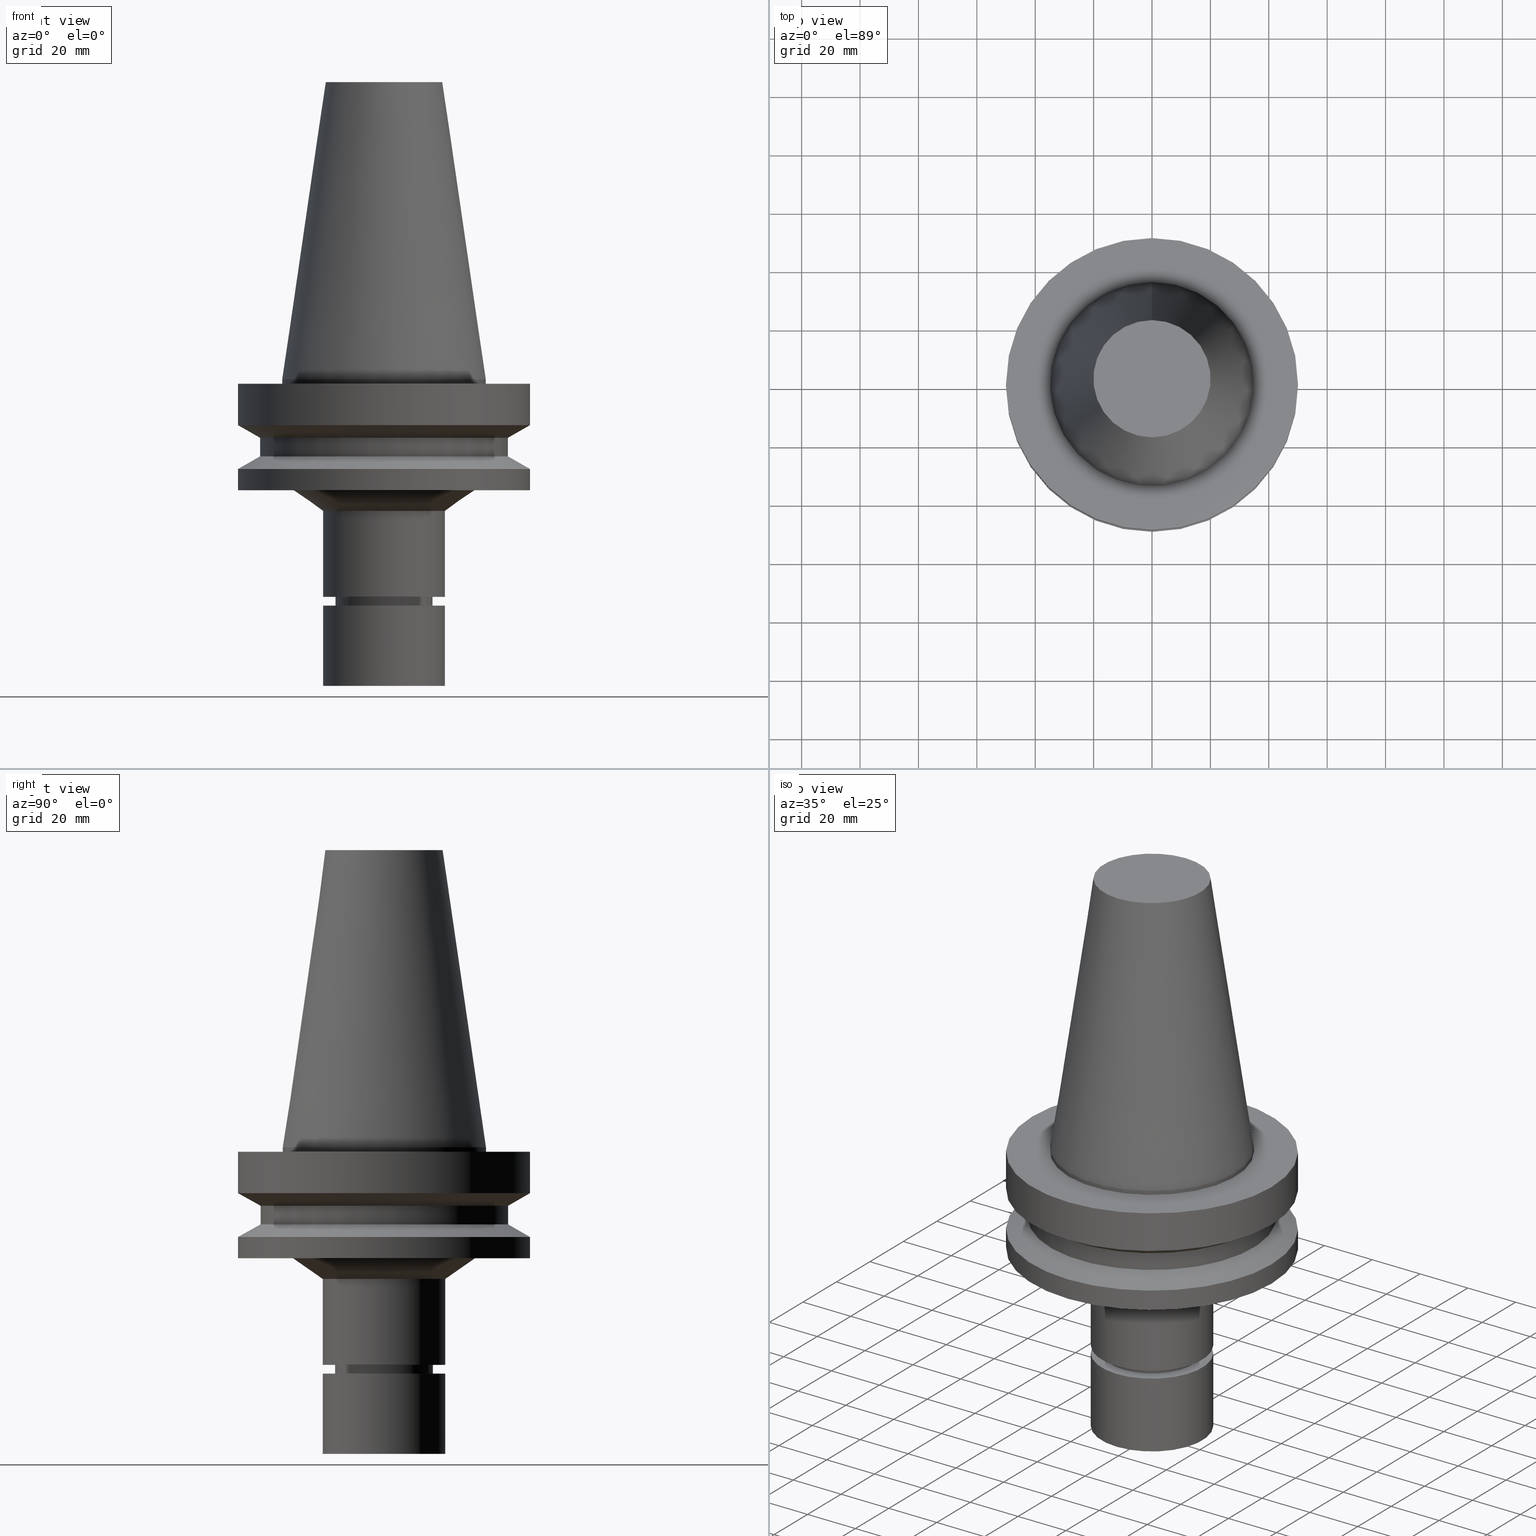
[diagram: canonical four-view strip — front | top / right | iso, engineering-drawing reading convention]
A machine part, canonical four-view strip (front | top / right | iso — engineering-drawing reading convention). The complete STEP part file that produces these views, byte-faithful:
ISO-10303-21;
HEADER;
FILE_DESCRIPTION((''),'1');
FILE_NAME('V:/90_\X2\53D65F9730C730FC30BF\X0\/00_\X2\6DE18DEF30C730FC30BF\X0\/ALL/BBT-BKUS\X2\FF76FF80FF9BFF78FF9E752852A05DE556F3\X0\201801/BBT50-MEGAER/BBT50-MEGAER25-105NL.stp','2018-02-02T08:07:09',(''),(''),'Spatial Interop R21 SP3','Kubotek KeyCreator 2011 V10.0.2 (22737)',' ');
FILE_SCHEMA(('automotive_design'));
ENDSEC;
DATA;
#1=MECHANICAL_DESIGN_GEOMETRIC_PRESENTATION_REPRESENTATION(' ',(#14,#15,#16,#17,#18,#19,#20,#21,#22,#23,#24,#25,#26,#27,#28,#29,#30,#31,#32,#33,#34,#35,#36,#37,#38,#39,#40,#41,#42,#43,#44,#45,#46,#47,#48,#49,#50,#51,#52,#53,#54,#55),#10);
#2=PRODUCT_DEFINITION_CONTEXT('',#56,'design');
#3=APPLICATION_PROTOCOL_DEFINITION('INTERNATIONAL STANDARD','automotive_design',1994,#56);
#4=PRODUCT_CATEGORY_RELATIONSHIP('NONE','NONE',#57,#58);
#5=SHAPE_DEFINITION_REPRESENTATION(#59,#60);
#6=PRODUCT_DEFINITION_CONTEXT('',#61,'design');
#7=APPLICATION_PROTOCOL_DEFINITION('INTERNATIONAL STANDARD','automotive_design',1994,#61);
#8=PRODUCT_CATEGORY_RELATIONSHIP('NONE','NONE',#62,#63);
#9=SHAPE_DEFINITION_REPRESENTATION(#64,#65);
#10= (GEOMETRIC_REPRESENTATION_CONTEXT(3)GLOBAL_UNCERTAINTY_ASSIGNED_CONTEXT((#68))GLOBAL_UNIT_ASSIGNED_CONTEXT((#70,#71,#72))REPRESENTATION_CONTEXT('NONE','WORKSPACE'));
#14=STYLED_ITEM('',(#74,#75),#76);
#15=STYLED_ITEM('',(#77,#78),#79);
#16=STYLED_ITEM('',(#80),#81);
#17=STYLED_ITEM('',(#82),#83);
#18=STYLED_ITEM('',(#84),#85);
#19=STYLED_ITEM('',(#86,#87),#88);
#20=STYLED_ITEM('',(#89),#90);
#21=STYLED_ITEM('',(#91,#92),#93);
#22=STYLED_ITEM('',(#94),#95);
#23=STYLED_ITEM('',(#96,#97),#98);
#24=STYLED_ITEM('',(#99),#100);
#25=STYLED_ITEM('',(#101,#102),#103);
#26=STYLED_ITEM('',(#104,#105),#106);
#27=STYLED_ITEM('',(#107),#108);
#28=STYLED_ITEM('',(#109),#110);
#29=STYLED_ITEM('',(#111,#112),#113);
#30=STYLED_ITEM('',(#114),#115);
#31=STYLED_ITEM('',(#116),#117);
#32=STYLED_ITEM('',(#118),#119);
#33=STYLED_ITEM('',(#120,#121),#122);
#34=STYLED_ITEM('',(#123),#124);
#35=STYLED_ITEM('',(#125),#126);
#36=STYLED_ITEM('',(#127),#128);
#37=STYLED_ITEM('',(#129,#130),#131);
#38=STYLED_ITEM('',(#132),#133);
#39=STYLED_ITEM('',(#134),#135);
#40=STYLED_ITEM('',(#136,#137),#138);
#41=STYLED_ITEM('',(#139,#140),#141);
#42=STYLED_ITEM('',(#142),#143);
#43=STYLED_ITEM('',(#144,#145),#146);
#44=STYLED_ITEM('',(#147,#148),#149);
#45=STYLED_ITEM('',(#150,#151),#152);
#46=STYLED_ITEM('',(#153,#154),#155);
#47=STYLED_ITEM('',(#156,#157),#158);
#48=STYLED_ITEM('',(#159,#160),#161);
#49=STYLED_ITEM('',(#162,#163),#164);
#50=STYLED_ITEM('',(#165),#166);
#51=STYLED_ITEM('',(#167),#168);
#52=STYLED_ITEM('',(#169,#170),#171);
#53=STYLED_ITEM('',(#172,#173),#174);
#54=STYLED_ITEM('',(#175,#176),#177);
#55=STYLED_ITEM('',(#178,#179),#180);
#56=APPLICATION_CONTEXT(' ');
#57=PRODUCT_CATEGORY('part','NONE');
#58=PRODUCT_RELATED_PRODUCT_CATEGORY('detail',' ',(#181));
#59=PRODUCT_DEFINITION_SHAPE('NONE','NONE',#182);
#60=ADVANCED_BREP_SHAPE_REPRESENTATION('Unnamed[1]',(#152,#183),#10);
#61=APPLICATION_CONTEXT(' ');
#62=PRODUCT_CATEGORY('part','NONE');
#63=PRODUCT_RELATED_PRODUCT_CATEGORY('detail',' ',(#184));
#64=PRODUCT_DEFINITION_SHAPE('NONE','NONE',#185);
#65=ADVANCED_BREP_SHAPE_REPRESENTATION('Unnamed[1]',(#141,#186),#10);
#68=UNCERTAINTY_MEASURE_WITH_UNIT(LENGTH_MEASURE(1.0E-006),#70,'','');
#70= (CONVERSION_BASED_UNIT('MILLIMETRE',#189)LENGTH_UNIT()NAMED_UNIT(#192));
#71= (NAMED_UNIT(#194)PLANE_ANGLE_UNIT()SI_UNIT($,.RADIAN.));
#72= (NAMED_UNIT(#194)SOLID_ANGLE_UNIT()SI_UNIT($,.STERADIAN.));
#74=PRESENTATION_STYLE_ASSIGNMENT((#200));
#75=PRESENTATION_STYLE_ASSIGNMENT((#201));
#76=ADVANCED_FACE('Unnamed[1]',(#202,#203),#204,.T.);
#77=PRESENTATION_STYLE_ASSIGNMENT((#205));
#78=PRESENTATION_STYLE_ASSIGNMENT((#206));
#79=ADVANCED_FACE('Unnamed[1]',(#207,#208),#209,.T.);
#80=PRESENTATION_STYLE_ASSIGNMENT((#210));
#81=EDGE_CURVE('Unnamed[1]',#211,#211,#212,.T.);
#82=PRESENTATION_STYLE_ASSIGNMENT((#213));
#83=EDGE_CURVE('Unnamed[1]',#214,#214,#215,.T.);
#84=PRESENTATION_STYLE_ASSIGNMENT((#216));
#85=EDGE_CURVE('Unnamed[1]',#217,#217,#218,.T.);
#86=PRESENTATION_STYLE_ASSIGNMENT((#219));
#87=PRESENTATION_STYLE_ASSIGNMENT((#220));
#88=ADVANCED_FACE('Unnamed[1]',(#221,#222),#223,.T.);
#89=PRESENTATION_STYLE_ASSIGNMENT((#224));
#90=EDGE_CURVE('Unnamed[1]',#225,#225,#226,.T.);
#91=PRESENTATION_STYLE_ASSIGNMENT((#227));
#92=PRESENTATION_STYLE_ASSIGNMENT((#228));
#93=ADVANCED_FACE('Unnamed[1]',(#229,#230),#231,.T.);
#94=PRESENTATION_STYLE_ASSIGNMENT((#232));
#95=EDGE_CURVE('Unnamed[1]',#233,#233,#234,.T.);
#96=PRESENTATION_STYLE_ASSIGNMENT((#235));
#97=PRESENTATION_STYLE_ASSIGNMENT((#236));
#98=ADVANCED_FACE('Unnamed[1]',(#237),#238,.T.);
#99=PRESENTATION_STYLE_ASSIGNMENT((#239));
#100=EDGE_CURVE('Unnamed[1]',#240,#240,#241,.T.);
#101=PRESENTATION_STYLE_ASSIGNMENT((#242));
#102=PRESENTATION_STYLE_ASSIGNMENT((#243));
#103=ADVANCED_FACE('Unnamed[1]',(#244),#245,.T.);
#104=PRESENTATION_STYLE_ASSIGNMENT((#246));
#105=PRESENTATION_STYLE_ASSIGNMENT((#247));
#106=ADVANCED_FACE('Unnamed[1]',(#248,#249),#250,.T.);
#107=PRESENTATION_STYLE_ASSIGNMENT((#251));
#108=EDGE_CURVE('Unnamed[1]',#252,#252,#253,.T.);
#109=PRESENTATION_STYLE_ASSIGNMENT((#254));
#110=EDGE_CURVE('Unnamed[1]',#255,#255,#256,.T.);
#111=PRESENTATION_STYLE_ASSIGNMENT((#257));
#112=PRESENTATION_STYLE_ASSIGNMENT((#258));
#113=ADVANCED_FACE('Unnamed[1]',(#259,#260),#261,.T.);
#114=PRESENTATION_STYLE_ASSIGNMENT((#262));
#115=EDGE_CURVE('Unnamed[1]',#263,#263,#264,.T.);
#116=PRESENTATION_STYLE_ASSIGNMENT((#265));
#117=EDGE_CURVE('Unnamed[1]',#266,#266,#267,.T.);
#118=PRESENTATION_STYLE_ASSIGNMENT((#268));
#119=EDGE_CURVE('Unnamed[1]',#269,#269,#270,.T.);
#120=PRESENTATION_STYLE_ASSIGNMENT((#271));
#121=PRESENTATION_STYLE_ASSIGNMENT((#272));
#122=ADVANCED_FACE('Unnamed[1]',(#273),#274,.T.);
#123=PRESENTATION_STYLE_ASSIGNMENT((#275));
#124=EDGE_CURVE('Unnamed[1]',#276,#276,#277,.T.);
#125=PRESENTATION_STYLE_ASSIGNMENT((#278));
#126=EDGE_CURVE('Unnamed[1]',#279,#279,#280,.T.);
#127=PRESENTATION_STYLE_ASSIGNMENT((#281));
#128=EDGE_CURVE('Unnamed[1]',#282,#282,#283,.T.);
#129=PRESENTATION_STYLE_ASSIGNMENT((#284));
#130=PRESENTATION_STYLE_ASSIGNMENT((#285));
#131=ADVANCED_FACE('Unnamed[1]',(#286,#287),#288,.T.);
#132=PRESENTATION_STYLE_ASSIGNMENT((#289));
#133=EDGE_CURVE('Unnamed[1]',#290,#290,#291,.T.);
#134=PRESENTATION_STYLE_ASSIGNMENT((#292));
#135=EDGE_CURVE('Unnamed[1]',#293,#293,#294,.T.);
#136=PRESENTATION_STYLE_ASSIGNMENT((#295));
#137=PRESENTATION_STYLE_ASSIGNMENT((#296));
#138=ADVANCED_FACE('Unnamed[1]',(#297,#298),#299,.T.);
#139=PRESENTATION_STYLE_ASSIGNMENT((#300));
#140=PRESENTATION_STYLE_ASSIGNMENT((#301));
#141=MANIFOLD_SOLID_BREP('Unnamed[1]',#302);
#142=PRESENTATION_STYLE_ASSIGNMENT((#303));
#143=EDGE_CURVE('Unnamed[1]',#304,#304,#305,.T.);
#144=PRESENTATION_STYLE_ASSIGNMENT((#306));
#145=PRESENTATION_STYLE_ASSIGNMENT((#307));
#146=ADVANCED_FACE('Unnamed[1]',(#308,#309),#310,.T.);
#147=PRESENTATION_STYLE_ASSIGNMENT((#311));
#148=PRESENTATION_STYLE_ASSIGNMENT((#312));
#149=ADVANCED_FACE('Unnamed[1]',(#313,#314),#315,.T.);
#150=PRESENTATION_STYLE_ASSIGNMENT((#316));
#151=PRESENTATION_STYLE_ASSIGNMENT((#317));
#152=MANIFOLD_SOLID_BREP('Unnamed[1]',#318);
#153=PRESENTATION_STYLE_ASSIGNMENT((#319));
#154=PRESENTATION_STYLE_ASSIGNMENT((#320));
#155=ADVANCED_FACE('Unnamed[1]',(#321,#322),#323,.T.);
#156=PRESENTATION_STYLE_ASSIGNMENT((#324));
#157=PRESENTATION_STYLE_ASSIGNMENT((#325));
#158=ADVANCED_FACE('Unnamed[1]',(#326,#327),#328,.T.);
#159=PRESENTATION_STYLE_ASSIGNMENT((#329));
#160=PRESENTATION_STYLE_ASSIGNMENT((#330));
#161=ADVANCED_FACE('Unnamed[1]',(#331,#332),#333,.T.);
#162=PRESENTATION_STYLE_ASSIGNMENT((#334));
#163=PRESENTATION_STYLE_ASSIGNMENT((#335));
#164=ADVANCED_FACE('Unnamed[1]',(#336,#337),#338,.T.);
#165=PRESENTATION_STYLE_ASSIGNMENT((#339));
#166=EDGE_CURVE('Unnamed[1]',#340,#340,#341,.T.);
#167=PRESENTATION_STYLE_ASSIGNMENT((#342));
#168=EDGE_CURVE('Unnamed[1]',#343,#343,#344,.T.);
#169=PRESENTATION_STYLE_ASSIGNMENT((#345));
#170=PRESENTATION_STYLE_ASSIGNMENT((#346));
#171=ADVANCED_FACE('Unnamed[1]',(#347),#348,.T.);
#172=PRESENTATION_STYLE_ASSIGNMENT((#349));
#173=PRESENTATION_STYLE_ASSIGNMENT((#350));
#174=ADVANCED_FACE('Unnamed[1]',(#351,#352),#353,.T.);
#175=PRESENTATION_STYLE_ASSIGNMENT((#354));
#176=PRESENTATION_STYLE_ASSIGNMENT((#355));
#177=ADVANCED_FACE('Unnamed[1]',(#356,#357),#358,.T.);
#178=PRESENTATION_STYLE_ASSIGNMENT((#359));
#179=PRESENTATION_STYLE_ASSIGNMENT((#360));
#180=ADVANCED_FACE('Unnamed[1]',(#361,#362),#363,.T.);
#181=PRODUCT('Unnamed[1]','Unnamed[1]','PART-Unnamed[1]-DESC',(#364));
#182=PRODUCT_DEFINITION('NONE','NONE',#365,#2);
#183=AXIS2_PLACEMENT_3D('',#366,#367,#368);
#184=PRODUCT('Unnamed[1]','Unnamed[1]','PART-Unnamed[1]-DESC',(#369));
#185=PRODUCT_DEFINITION('NONE','NONE',#370,#6);
#186=AXIS2_PLACEMENT_3D('',#371,#372,#373);
#189=LENGTH_MEASURE_WITH_UNIT(LENGTH_MEASURE(1.0),#374);
#192=DIMENSIONAL_EXPONENTS(1.0,0.0,0.0,0.0,0.0,0.0,0.0);
#194=DIMENSIONAL_EXPONENTS(0.0,0.0,0.0,0.0,0.0,0.0,0.0);
#200=SURFACE_STYLE_USAGE(.BOTH.,#375);
#201=CURVE_STYLE('',#376,POSITIVE_LENGTH_MEASURE(1000.0),#377);
#202=FACE_BOUND('',#378,.T.);
#203=FACE_BOUND('',#379,.T.);
#204=CYLINDRICAL_SURFACE('',#380,34.925);
#205=SURFACE_STYLE_USAGE(.BOTH.,#381);
#206=CURVE_STYLE('',#382,POSITIVE_LENGTH_MEASURE(1000.0),#383);
#207=FACE_BOUND('',#384,.T.);
#208=FACE_BOUND('',#385,.T.);
#209=CYLINDRICAL_SURFACE('',#386,16.0);
#210=CURVE_STYLE('',#387,POSITIVE_LENGTH_MEASURE(1000.0),#388);
#211=VERTEX_POINT('',#389);
#212=CIRCLE('',#390,50.0);
#213=CURVE_STYLE('',#391,POSITIVE_LENGTH_MEASURE(1000.0),#392);
#214=VERTEX_POINT('',#393);
#215=CIRCLE('',#394,16.7499999999907);
#216=CURVE_STYLE('',#395,POSITIVE_LENGTH_MEASURE(1000.0),#396);
#217=VERTEX_POINT('',#397);
#218=CIRCLE('',#398,21.0000000000002);
#219=SURFACE_STYLE_USAGE(.BOTH.,#399);
#220=CURVE_STYLE('',#400,POSITIVE_LENGTH_MEASURE(1000.0),#401);
#221=FACE_BOUND('',#402,.T.);
#222=FACE_BOUND('',#403,.T.);
#223=CYLINDRICAL_SURFACE('',#404,50.0);
#224=CURVE_STYLE('',#405,POSITIVE_LENGTH_MEASURE(1000.0),#406);
#225=VERTEX_POINT('',#407);
#226=CIRCLE('',#408,50.0);
#227=SURFACE_STYLE_USAGE(.BOTH.,#409);
#228=CURVE_STYLE('',#410,POSITIVE_LENGTH_MEASURE(1000.0),#411);
#229=FACE_BOUND('',#412,.T.);
#230=FACE_BOUND('',#413,.T.);
#231=CONICAL_SURFACE('',#414,26.071786335727,0.962446965226524);
#232=CURVE_STYLE('',#415,POSITIVE_LENGTH_MEASURE(1000.0),#416);
#233=VERTEX_POINT('',#417);
#234=CIRCLE('',#418,20.0791666651884);
#235=SURFACE_STYLE_USAGE(.BOTH.,#419);
#236=CURVE_STYLE('',#420,POSITIVE_LENGTH_MEASURE(1000.0),#421);
#237=FACE_OUTER_BOUND('',#422,.T.);
#238=PLANE('',#423);
#239=CURVE_STYLE('',#424,POSITIVE_LENGTH_MEASURE(1000.0),#425);
#240=VERTEX_POINT('',#426);
#241=CIRCLE('',#427,21.0);
#242=SURFACE_STYLE_USAGE(.BOTH.,#428);
#243=CURVE_STYLE('',#429,POSITIVE_LENGTH_MEASURE(1000.0),#430);
#244=FACE_OUTER_BOUND('',#431,.T.);
#245=PLANE('',#432);
#246=SURFACE_STYLE_USAGE(.BOTH.,#433);
#247=CURVE_STYLE('',#434,POSITIVE_LENGTH_MEASURE(1000.0),#435);
#248=FACE_BOUND('',#436,.T.);
#249=FACE_BOUND('',#437,.T.);
#250=CONICAL_SURFACE('',#438,16.3750000000008,1.0471975512006);
#251=CURVE_STYLE('',#439,POSITIVE_LENGTH_MEASURE(1000.0),#440);
#252=VERTEX_POINT('',#441);
#253=CIRCLE('',#442,16.0);
#254=CURVE_STYLE('',#443,POSITIVE_LENGTH_MEASURE(1000.0),#444);
#255=VERTEX_POINT('',#445);
#256=CIRCLE('',#446,34.925);
#257=SURFACE_STYLE_USAGE(.BOTH.,#447);
#258=CURVE_STYLE('',#448,POSITIVE_LENGTH_MEASURE(1000.0),#449);
#259=FACE_OUTER_BOUND('',#450,.T.);
#260=FACE_BOUND('',#451,.T.);
#261=PLANE('',#452);
#262=CURVE_STYLE('',#453,POSITIVE_LENGTH_MEASURE(1000.0),#454);
#263=VERTEX_POINT('',#455);
#264=CIRCLE('',#456,42.5);
#265=CURVE_STYLE('',#457,POSITIVE_LENGTH_MEASURE(1000.0),#458);
#266=VERTEX_POINT('',#459);
#267=CIRCLE('',#460,50.0);
#268=CURVE_STYLE('',#461,POSITIVE_LENGTH_MEASURE(1000.0),#462);
#269=VERTEX_POINT('',#463);
#270=CIRCLE('',#464,16.7500000000017);
#271=SURFACE_STYLE_USAGE(.BOTH.,#465);
#272=CURVE_STYLE('',#466,POSITIVE_LENGTH_MEASURE(1000.0),#467);
#273=FACE_OUTER_BOUND('',#468,.T.);
#274=PLANE('',#469);
#275=CURVE_STYLE('',#470,POSITIVE_LENGTH_MEASURE(1000.0),#471);
#276=VERTEX_POINT('',#472);
#277=CIRCLE('',#473,31.1435726714572);
#278=CURVE_STYLE('',#474,POSITIVE_LENGTH_MEASURE(1000.0),#475);
#279=VERTEX_POINT('',#476);
#280=CIRCLE('',#477,50.0);
#281=CURVE_STYLE('',#478,POSITIVE_LENGTH_MEASURE(1000.0),#479);
#282=VERTEX_POINT('',#480);
#283=CIRCLE('',#481,16.0);
#284=SURFACE_STYLE_USAGE(.BOTH.,#482);
#285=CURVE_STYLE('',#483,POSITIVE_LENGTH_MEASURE(1000.0),#484);
#286=FACE_BOUND('',#485,.T.);
#287=FACE_BOUND('',#486,.T.);
#288=CYLINDRICAL_SURFACE('',#487,21.0);
#289=CURVE_STYLE('',#488,POSITIVE_LENGTH_MEASURE(1000.0),#489);
#290=VERTEX_POINT('',#490);
#291=CIRCLE('',#491,21.0);
#292=CURVE_STYLE('',#492,POSITIVE_LENGTH_MEASURE(1000.0),#493);
#293=VERTEX_POINT('',#494);
#294=CIRCLE('',#495,20.9999999999967);
#295=SURFACE_STYLE_USAGE(.BOTH.,#496);
#296=CURVE_STYLE('',#497,POSITIVE_LENGTH_MEASURE(1000.0),#498);
#297=FACE_BOUND('',#499,.T.);
#298=FACE_BOUND('',#500,.T.);
#299=CYLINDRICAL_SURFACE('',#501,16.7499999999962);
#300=SURFACE_STYLE_USAGE(.BOTH.,#502);
#301=CURVE_STYLE('',#503,POSITIVE_LENGTH_MEASURE(1000.0),#504);
#302=CLOSED_SHELL('',(#98,#103,#131));
#303=CURVE_STYLE('',#505,POSITIVE_LENGTH_MEASURE(1000.0),#506);
#304=VERTEX_POINT('',#507);
#305=CIRCLE('',#508,42.5);
#306=SURFACE_STYLE_USAGE(.BOTH.,#509);
#307=CURVE_STYLE('',#510,POSITIVE_LENGTH_MEASURE(1000.0),#511);
#308=FACE_BOUND('',#512,.T.);
#309=FACE_BOUND('',#513,.T.);
#310=CONICAL_SURFACE('',#514,46.25,1.04719755108882);
#311=SURFACE_STYLE_USAGE(.BOTH.,#515);
#312=CURVE_STYLE('',#516,POSITIVE_LENGTH_MEASURE(1000.0),#517);
#313=FACE_BOUND('',#518,.T.);
#314=FACE_BOUND('',#519,.T.);
#315=CONICAL_SURFACE('',#520,15.4500000000002,0.523598775598085);
#316=SURFACE_STYLE_USAGE(.BOTH.,#521);
#317=CURVE_STYLE('',#522,POSITIVE_LENGTH_MEASURE(1000.0),#523);
#318=CLOSED_SHELL('',(#171,#149,#79,#106,#138,#113,#174,#93,#155,#88,#146,#161,#164,#158,#177,#76,#180,#122));
#319=SURFACE_STYLE_USAGE(.BOTH.,#524);
#320=CURVE_STYLE('',#525,POSITIVE_LENGTH_MEASURE(1000.0),#526);
#321=FACE_OUTER_BOUND('',#527,.T.);
#322=FACE_BOUND('',#528,.T.);
#323=PLANE('',#529);
#324=SURFACE_STYLE_USAGE(.BOTH.,#530);
#325=CURVE_STYLE('',#531,POSITIVE_LENGTH_MEASURE(1000.0),#532);
#326=FACE_BOUND('',#533,.T.);
#327=FACE_BOUND('',#534,.T.);
#328=CYLINDRICAL_SURFACE('',#535,50.0);
#329=SURFACE_STYLE_USAGE(.BOTH.,#536);
#330=CURVE_STYLE('',#537,POSITIVE_LENGTH_MEASURE(1000.0),#538);
#331=FACE_BOUND('',#539,.T.);
#332=FACE_BOUND('',#540,.T.);
#333=CYLINDRICAL_SURFACE('',#541,42.5);
#334=SURFACE_STYLE_USAGE(.BOTH.,#542);
#335=CURVE_STYLE('',#543,POSITIVE_LENGTH_MEASURE(1000.0),#544);
#336=FACE_BOUND('',#545,.T.);
#337=FACE_BOUND('',#546,.T.);
#338=CONICAL_SURFACE('',#547,46.25,1.04719755108882);
#339=CURVE_STYLE('',#548,POSITIVE_LENGTH_MEASURE(1000.0),#549);
#340=VERTEX_POINT('',#550);
#341=CIRCLE('',#551,34.925);
#342=CURVE_STYLE('',#552,POSITIVE_LENGTH_MEASURE(1000.0),#553);
#343=VERTEX_POINT('',#554);
#344=CIRCLE('',#555,14.9000000000004);
#345=SURFACE_STYLE_USAGE(.BOTH.,#556);
#346=CURVE_STYLE('',#557,POSITIVE_LENGTH_MEASURE(1000.0),#558);
#347=FACE_OUTER_BOUND('',#559,.T.);
#348=PLANE('',#560);
#349=SURFACE_STYLE_USAGE(.BOTH.,#561);
#350=CURVE_STYLE('',#562,POSITIVE_LENGTH_MEASURE(1000.0),#563);
#351=FACE_BOUND('',#564,.T.);
#352=FACE_BOUND('',#565,.T.);
#353=CYLINDRICAL_SURFACE('',#566,20.9999999999985);
#354=SURFACE_STYLE_USAGE(.BOTH.,#567);
#355=CURVE_STYLE('',#568,POSITIVE_LENGTH_MEASURE(1000.0),#569);
#356=FACE_BOUND('',#570,.T.);
#357=FACE_OUTER_BOUND('',#571,.T.);
#358=PLANE('',#572);
#359=SURFACE_STYLE_USAGE(.BOTH.,#573);
#360=CURVE_STYLE('',#574,POSITIVE_LENGTH_MEASURE(1000.0),#575);
#361=FACE_BOUND('',#576,.T.);
#362=FACE_BOUND('',#577,.T.);
#363=CONICAL_SURFACE('',#578,27.5020833325942,0.144812498253157);
#364=PRODUCT_CONTEXT('',#56,'mechanical');
#365=PRODUCT_DEFINITION_FORMATION_WITH_SPECIFIED_SOURCE(' ','NONE',#181,.NOT_KNOWN.);
#366=CARTESIAN_POINT('',(0.0,0.0,0.0));
#367=DIRECTION('',(0.0,0.0,1.0));
#368=DIRECTION('',(1.0,0.0,0.0));
#369=PRODUCT_CONTEXT('',#61,'mechanical');
#370=PRODUCT_DEFINITION_FORMATION_WITH_SPECIFIED_SOURCE(' ','NONE',#184,.NOT_KNOWN.);
#371=CARTESIAN_POINT('',(0.0,0.0,0.0));
#372=DIRECTION('',(0.0,0.0,1.0));
#373=DIRECTION('',(1.0,0.0,0.0));
#374= (NAMED_UNIT(#192)LENGTH_UNIT()SI_UNIT(.MILLI.,.METRE.));
#375=SURFACE_SIDE_STYLE('',(#580));
#376=DRAUGHTING_PRE_DEFINED_CURVE_FONT('continuous');
#377=COLOUR_RGB('',0.0,1.0,0.0);
#378=EDGE_LOOP('',(#581));
#379=EDGE_LOOP('',(#582));
#380=AXIS2_PLACEMENT_3D('',#583,#584,#585);
#381=SURFACE_SIDE_STYLE('',(#586));
#382=DRAUGHTING_PRE_DEFINED_CURVE_FONT('continuous');
#383=COLOUR_RGB('',0.0,1.0,0.0);
#384=EDGE_LOOP('',(#587));
#385=EDGE_LOOP('',(#588));
#386=AXIS2_PLACEMENT_3D('',#589,#590,#591);
#387=DRAUGHTING_PRE_DEFINED_CURVE_FONT('continuous');
#388=COLOUR_RGB('',0.0,1.0,0.0);
#389=CARTESIAN_POINT('',(1.87983283669119E-015,50.0,-30.7000000000001));
#390=AXIS2_PLACEMENT_3D('',#592,#593,#594);
#391=DRAUGHTING_PRE_DEFINED_CURVE_FONT('continuous');
#392=COLOUR_RGB('',0.0,1.0,0.0);
#393=CARTESIAN_POINT('',(4.56180932682384E-015,16.7499999999907,-74.4999999999992));
#394=AXIS2_PLACEMENT_3D('',#595,#596,#597);
#395=DRAUGHTING_PRE_DEFINED_CURVE_FONT('continuous');
#396=COLOUR_RGB('',0.0,1.0,0.0);
#397=CARTESIAN_POINT('',(4.56180932682389E-015,21.0000000000003,-74.4999999999999));
#398=AXIS2_PLACEMENT_3D('',#598,#599,#600);
#399=SURFACE_SIDE_STYLE('',(#601));
#400=DRAUGHTING_PRE_DEFINED_CURVE_FONT('continuous');
#401=COLOUR_RGB('',0.0,1.0,0.0);
#402=EDGE_LOOP('',(#602));
#403=EDGE_LOOP('',(#603));
#404=AXIS2_PLACEMENT_3D('',#604,#605,#606);
#405=DRAUGHTING_PRE_DEFINED_CURVE_FONT('continuous');
#406=COLOUR_RGB('',0.0,1.0,0.0);
#407=CARTESIAN_POINT('',(9.61347737330674E-016,50.0,-15.7));
#408=AXIS2_PLACEMENT_3D('',#607,#608,#609);
#409=SURFACE_SIDE_STYLE('',(#610));
#410=DRAUGHTING_PRE_DEFINED_CURVE_FONT('continuous');
#411=COLOUR_RGB('',0.0,1.0,0.0);
#412=EDGE_LOOP('',(#611));
#413=EDGE_LOOP('',(#612));
#414=AXIS2_PLACEMENT_3D('',#613,#614,#615);
#415=DRAUGHTING_PRE_DEFINED_CURVE_FONT('continuous');
#416=COLOUR_RGB('',0.0,1.0,0.0);
#417=CARTESIAN_POINT('',(-6.23345220766003E-015,20.0791666651884,101.8));
#418=AXIS2_PLACEMENT_3D('',#616,#617,#618);
#419=SURFACE_SIDE_STYLE('',(#619));
#420=DRAUGHTING_PRE_DEFINED_CURVE_FONT('continuous');
#421=COLOUR_RGB('',0.0,1.0,0.0);
#422=EDGE_LOOP('',(#620));
#423=AXIS2_PLACEMENT_3D('',#621,#622,#623);
#424=DRAUGHTING_PRE_DEFINED_CURVE_FONT('continuous');
#425=COLOUR_RGB('',0.0,1.0,0.0);
#426=CARTESIAN_POINT('',(6.4293956955236E-015,21.0,-105.0));
#427=AXIS2_PLACEMENT_3D('',#624,#625,#626);
#428=SURFACE_SIDE_STYLE('',(#627));
#429=DRAUGHTING_PRE_DEFINED_CURVE_FONT('continuous');
#430=COLOUR_RGB('',0.0,1.0,0.0);
#431=EDGE_LOOP('',(#628));
#432=AXIS2_PLACEMENT_3D('',#629,#630,#631);
#433=SURFACE_SIDE_STYLE('',(#632));
#434=DRAUGHTING_PRE_DEFINED_CURVE_FONT('continuous');
#435=COLOUR_RGB('',0.0,1.0,0.0);
#436=EDGE_LOOP('',(#633));
#437=EDGE_LOOP('',(#634));
#438=AXIS2_PLACEMENT_3D('',#635,#636,#637);
#439=DRAUGHTING_PRE_DEFINED_CURVE_FONT('continuous');
#440=COLOUR_RGB('',0.0,1.0,0.0);
#441=CARTESIAN_POINT('',(4.95371697258611E-015,16.0,-80.9003375672901));
#442=AXIS2_PLACEMENT_3D('',#638,#639,#640);
#443=DRAUGHTING_PRE_DEFINED_CURVE_FONT('continuous');
#444=COLOUR_RGB('',0.0,1.0,0.0);
#445=CARTESIAN_POINT('',(9.18485099360511E-017,34.925,-1.5));
#446=AXIS2_PLACEMENT_3D('',#641,#642,#643);
#447=SURFACE_SIDE_STYLE('',(#644));
#448=DRAUGHTING_PRE_DEFINED_CURVE_FONT('continuous');
#449=COLOUR_RGB('',0.0,1.0,0.0);
#450=EDGE_LOOP('',(#645));
#451=EDGE_LOOP('',(#646));
#452=AXIS2_PLACEMENT_3D('',#647,#648,#649);
#453=DRAUGHTING_PRE_DEFINED_CURVE_FONT('continuous');
#454=COLOUR_RGB('',0.0,1.0,0.0);
#455=CARTESIAN_POINT('',(1.2264915470779E-015,42.5,-20.03012702));
#456=AXIS2_PLACEMENT_3D('',#650,#651,#652);
#457=DRAUGHTING_PRE_DEFINED_CURVE_FONT('continuous');
#458=COLOUR_RGB('',0.0,1.0,0.0);
#459=CARTESIAN_POINT('',(9.18485099360509E-017,50.0,-1.49999999999999));
#460=AXIS2_PLACEMENT_3D('',#653,#654,#655);
#461=DRAUGHTING_PRE_DEFINED_CURVE_FONT('continuous');
#462=COLOUR_RGB('',0.0,1.0,0.0);
#463=CARTESIAN_POINT('',(4.92720259161817E-015,16.7500000000017,-80.4673248654009));
#464=AXIS2_PLACEMENT_3D('',#656,#657,#658);
#465=SURFACE_SIDE_STYLE('',(#659));
#466=DRAUGHTING_PRE_DEFINED_CURVE_FONT('continuous');
#467=COLOUR_RGB('',0.0,1.0,0.0);
#468=EDGE_LOOP('',(#660));
#469=AXIS2_PLACEMENT_3D('',#661,#662,#663);
#470=DRAUGHTING_PRE_DEFINED_CURVE_FONT('continuous');
#471=COLOUR_RGB('',0.0,1.0,0.0);
#472=CARTESIAN_POINT('',(2.32682891837996E-015,31.1435726714572,-37.9999999999998));
#473=AXIS2_PLACEMENT_3D('',#664,#665,#666);
#474=DRAUGHTING_PRE_DEFINED_CURVE_FONT('continuous');
#475=COLOUR_RGB('',0.0,1.0,0.0);
#476=CARTESIAN_POINT('',(2.32682891837996E-015,50.0,-37.9999999999998));
#477=AXIS2_PLACEMENT_3D('',#667,#668,#669);
#478=DRAUGHTING_PRE_DEFINED_CURVE_FONT('continuous');
#479=COLOUR_RGB('',0.0,1.0,0.0);
#480=CARTESIAN_POINT('',(5.68816255169872E-015,16.0,-92.8947441116744));
#481=AXIS2_PLACEMENT_3D('',#670,#671,#672);
#482=SURFACE_SIDE_STYLE('',(#673));
#483=DRAUGHTING_PRE_DEFINED_CURVE_FONT('continuous');
#484=COLOUR_RGB('',0.0,1.0,0.0);
#485=EDGE_LOOP('',(#674));
#486=EDGE_LOOP('',(#675));
#487=AXIS2_PLACEMENT_3D('',#676,#677,#678);
#488=DRAUGHTING_PRE_DEFINED_CURVE_FONT('continuous');
#489=COLOUR_RGB('',0.0,1.0,0.0);
#490=CARTESIAN_POINT('',(4.74550634669599E-015,21.0,-77.5));
#491=AXIS2_PLACEMENT_3D('',#679,#680,#681);
#492=DRAUGHTING_PRE_DEFINED_CURVE_FONT('continuous');
#493=COLOUR_RGB('',0.0,1.0,0.0);
#494=CARTESIAN_POINT('',(2.75941339741663E-015,20.9999999999967,-45.0646406676249));
#495=AXIS2_PLACEMENT_3D('',#682,#683,#684);
#496=SURFACE_SIDE_STYLE('',(#685));
#497=DRAUGHTING_PRE_DEFINED_CURVE_FONT('continuous');
#498=COLOUR_RGB('',0.0,1.0,0.0);
#499=EDGE_LOOP('',(#686));
#500=EDGE_LOOP('',(#687));
#501=AXIS2_PLACEMENT_3D('',#688,#689,#690);
#502=SURFACE_SIDE_STYLE('',(#691));
#503=DRAUGHTING_PRE_DEFINED_CURVE_FONT('continuous');
#504=COLOUR_RGB('',0.0,1.0,0.0);
#505=DRAUGHTING_PRE_DEFINED_CURVE_FONT('continuous');
#506=COLOUR_RGB('',0.0,1.0,0.0);
#507=CARTESIAN_POINT('',(1.61468902694397E-015,42.5,-26.3698729800001));
#508=AXIS2_PLACEMENT_3D('',#692,#693,#694);
#509=SURFACE_SIDE_STYLE('',(#695));
#510=DRAUGHTING_PRE_DEFINED_CURVE_FONT('continuous');
#511=COLOUR_RGB('',0.0,1.0,0.0);
#512=EDGE_LOOP('',(#696));
#513=EDGE_LOOP('',(#697));
#514=AXIS2_PLACEMENT_3D('',#698,#699,#700);
#515=SURFACE_SIDE_STYLE('',(#701));
#516=DRAUGHTING_PRE_DEFINED_CURVE_FONT('continuous');
#517=COLOUR_RGB('',0.0,1.0,0.0);
#518=EDGE_LOOP('',(#702));
#519=EDGE_LOOP('',(#703));
#520=AXIS2_PLACEMENT_3D('',#704,#705,#706);
#521=SURFACE_SIDE_STYLE('',(#707));
#522=DRAUGHTING_PRE_DEFINED_CURVE_FONT('continuous');
#523=COLOUR_RGB('',0.0,1.0,0.0);
#524=SURFACE_SIDE_STYLE('',(#708));
#525=DRAUGHTING_PRE_DEFINED_CURVE_FONT('continuous');
#526=COLOUR_RGB('',0.0,1.0,0.0);
#527=EDGE_LOOP('',(#709));
#528=EDGE_LOOP('',(#710));
#529=AXIS2_PLACEMENT_3D('',#711,#712,#713);
#530=SURFACE_SIDE_STYLE('',(#714));
#531=DRAUGHTING_PRE_DEFINED_CURVE_FONT('continuous');
#532=COLOUR_RGB('',0.0,1.0,0.0);
#533=EDGE_LOOP('',(#715));
#534=EDGE_LOOP('',(#716));
#535=AXIS2_PLACEMENT_3D('',#717,#718,#719);
#536=SURFACE_SIDE_STYLE('',(#720));
#537=DRAUGHTING_PRE_DEFINED_CURVE_FONT('continuous');
#538=COLOUR_RGB('',0.0,1.0,0.0);
#539=EDGE_LOOP('',(#721));
#540=EDGE_LOOP('',(#722));
#541=AXIS2_PLACEMENT_3D('',#723,#724,#725);
#542=SURFACE_SIDE_STYLE('',(#726));
#543=DRAUGHTING_PRE_DEFINED_CURVE_FONT('continuous');
#544=COLOUR_RGB('',0.0,1.0,0.0);
#545=EDGE_LOOP('',(#727));
#546=EDGE_LOOP('',(#728));
#547=AXIS2_PLACEMENT_3D('',#729,#730,#731);
#548=DRAUGHTING_PRE_DEFINED_CURVE_FONT('continuous');
#549=COLOUR_RGB('',0.0,1.0,0.0);
#550=CARTESIAN_POINT('',(-4.30483861169435E-031,34.925,4.27707894602213E-015));
#551=AXIS2_PLACEMENT_3D('',#732,#733,#734);
#552=DRAUGHTING_PRE_DEFINED_CURVE_FONT('continuous');
#553=COLOUR_RGB('',0.0,1.0,0.0);
#554=CARTESIAN_POINT('',(5.80482582795848E-015,14.9000000000005,-94.8000000000004));
#555=AXIS2_PLACEMENT_3D('',#735,#736,#737);
#556=SURFACE_SIDE_STYLE('',(#738));
#557=DRAUGHTING_PRE_DEFINED_CURVE_FONT('continuous');
#558=COLOUR_RGB('',0.0,1.0,0.0);
#559=EDGE_LOOP('',(#739));
#560=AXIS2_PLACEMENT_3D('',#740,#741,#742);
#561=SURFACE_SIDE_STYLE('',(#743));
#562=DRAUGHTING_PRE_DEFINED_CURVE_FONT('continuous');
#563=COLOUR_RGB('',0.0,1.0,0.0);
#564=EDGE_LOOP('',(#744));
#565=EDGE_LOOP('',(#745));
#566=AXIS2_PLACEMENT_3D('',#746,#747,#748);
#567=SURFACE_SIDE_STYLE('',(#749));
#568=DRAUGHTING_PRE_DEFINED_CURVE_FONT('continuous');
#569=COLOUR_RGB('',0.0,1.0,0.0);
#570=EDGE_LOOP('',(#750));
#571=EDGE_LOOP('',(#751));
#572=AXIS2_PLACEMENT_3D('',#752,#753,#754);
#573=SURFACE_SIDE_STYLE('',(#755));
#574=DRAUGHTING_PRE_DEFINED_CURVE_FONT('continuous');
#575=COLOUR_RGB('',0.0,1.0,0.0);
#576=EDGE_LOOP('',(#756));
#577=EDGE_LOOP('',(#757));
#578=AXIS2_PLACEMENT_3D('',#758,#759,#760);
#580=SURFACE_STYLE_FILL_AREA(#761);
#581=ORIENTED_EDGE('',*,*,#166,.F.);
#582=ORIENTED_EDGE('',*,*,#110,.T.);
#583=CARTESIAN_POINT('',(4.59242549680257E-017,1.2996063069323E-014,-0.75));
#584=DIRECTION('',(-6.12323399573677E-017,1.40684069939028E-019,1.0));
#585=DIRECTION('',(-4.81853831597193E-033,1.0,-1.40684069939028E-019));
#586=SURFACE_STYLE_FILL_AREA(#762);
#587=ORIENTED_EDGE('',*,*,#108,.F.);
#588=ORIENTED_EDGE('',*,*,#128,.T.);
#589=CARTESIAN_POINT('',(5.32093976214242E-015,1.29839434826625E-014,-86.8975408394823));
#590=DIRECTION('',(-6.12323399573677E-017,1.40684069939021E-019,1.0));
#591=DIRECTION('',(-4.81853831597193E-033,1.0,-1.40684069939021E-019));
#592=CARTESIAN_POINT('',(1.87983283669119E-015,1.29918495814283E-014,-30.7000000000001));
#593=DIRECTION('',(-6.12323399573677E-017,1.40684069939013E-019,1.0));
#594=DIRECTION('',(-4.81853831597193E-033,1.0,-1.40684069939013E-019));
#595=CARTESIAN_POINT('',(4.56180932682384E-015,1.2985687619165E-014,-74.4999999999992));
#596=DIRECTION('',(-6.12323399573677E-017,1.40684069939025E-019,1.0));
#597=DIRECTION('',(-4.81853831597193E-033,1.0,-1.40684069939025E-019));
#598=CARTESIAN_POINT('',(4.56180932682389E-015,1.2985687619165E-014,-74.4999999999999));
#599=DIRECTION('',(-6.12323399573677E-017,1.40684069939029E-019,1.0));
#600=DIRECTION('',(-4.81853831597193E-033,1.0,-1.40684069939029E-019));
#601=SURFACE_STYLE_FILL_AREA(#763);
#602=ORIENTED_EDGE('',*,*,#81,.F.);
#603=ORIENTED_EDGE('',*,*,#126,.T.);
#604=CARTESIAN_POINT('',(2.10333087753557E-015,1.29913360845731E-014,-34.3499999999999));
#605=DIRECTION('',(-6.12323399573677E-017,1.40684069939013E-019,1.0));
#606=DIRECTION('',(-4.81853831597193E-033,1.0,-1.40684069939013E-019));
#607=CARTESIAN_POINT('',(9.61347737330675E-016,1.29939598424774E-014,-15.7));
#608=DIRECTION('',(-6.12323399573677E-017,1.40684069939013E-019,1.0));
#609=DIRECTION('',(-4.81853831597193E-033,1.0,-1.40684069939013E-019));
#610=SURFACE_STYLE_FILL_AREA(#764);
#611=ORIENTED_EDGE('',*,*,#124,.F.);
#612=ORIENTED_EDGE('',*,*,#135,.T.);
#613=CARTESIAN_POINT('',(2.54312115789829E-015,1.29903256465169E-014,-41.5323203338124));
#614=DIRECTION('',(-6.12323399573676E-017,1.40684069939026E-019,1.0));
#615=DIRECTION('',(-4.81853831597193E-033,1.0,-1.40684069939026E-019));
#616=CARTESIAN_POINT('',(-6.23345220766003E-015,1.30104902206953E-014,101.8));
#617=DIRECTION('',(-6.12323399573677E-017,1.40684069939014E-019,1.0));
#618=DIRECTION('',(-4.81853831597193E-033,1.0,-1.40684069939014E-019));
#619=SURFACE_STYLE_FILL_AREA(#765);
#620=ORIENTED_EDGE('',*,*,#100,.T.);
#621=CARTESIAN_POINT('',(6.4293956955236E-015,10.5,-105.0));
#622=DIRECTION('',(6.12323399573677E-017,1.22464679914735E-016,-1.0));
#623=DIRECTION('',(-1.23259516440783E-032,1.0,1.22464679914735E-016));
#624=CARTESIAN_POINT('',(6.4293956955236E-015,1.29813967550319E-014,-105.0));
#625=DIRECTION('',(6.12323399573677E-017,-1.4068406993903E-019,-1.0));
#626=DIRECTION('',(-4.81853831597193E-033,1.0,-1.4068406993903E-019));
#627=SURFACE_STYLE_FILL_AREA(#766);
#628=ORIENTED_EDGE('',*,*,#133,.F.);
#629=CARTESIAN_POINT('',(4.74550634669599E-015,10.5,-77.5));
#630=DIRECTION('',(-6.12323399573677E-017,-1.22464679914735E-016,1.0));
#631=DIRECTION('',(1.23259516440783E-032,-1.0,-1.22464679914735E-016));
#632=SURFACE_STYLE_FILL_AREA(#767);
#633=ORIENTED_EDGE('',*,*,#119,.F.);
#634=ORIENTED_EDGE('',*,*,#108,.T.);
#635=CARTESIAN_POINT('',(4.94045978210214E-015,1.29848176526217E-014,-80.6838312163455));
#636=DIRECTION('',(-6.12323399573677E-017,1.40684069939024E-019,1.0));
#637=DIRECTION('',(-4.81853831597193E-033,1.0,-1.40684069939024E-019));
#638=CARTESIAN_POINT('',(4.95371697258611E-015,1.29847871936271E-014,-80.9003375672901));
#639=DIRECTION('',(-6.12323399573677E-017,1.40684069939021E-019,1.0));
#640=DIRECTION('',(-4.81853831597193E-033,1.0,-1.40684069939021E-019));
#641=CARTESIAN_POINT('',(9.18485099360515E-017,1.29959575562706E-014,-1.5));
#642=DIRECTION('',(-6.12323399573677E-017,1.40684069939028E-019,1.0));
#643=DIRECTION('',(-4.81853831597193E-033,1.0,-1.40684069939028E-019));
#644=SURFACE_STYLE_FILL_AREA(#768);
#645=ORIENTED_EDGE('',*,*,#85,.F.);
#646=ORIENTED_EDGE('',*,*,#83,.T.);
#647=CARTESIAN_POINT('',(4.56180932682386E-015,18.8749999999955,-74.4999999999996));
#648=DIRECTION('',(6.12323399573677E-017,-1.70407791902128E-013,-1.0));
#649=DIRECTION('',(-1.04296406924047E-029,-1.0,1.70407791902128E-013));
#650=CARTESIAN_POINT('',(1.2264915470779E-015,1.29933506625849E-014,-20.03012702));
#651=DIRECTION('',(-6.12323399573677E-017,1.40684069939023E-019,1.0));
#652=DIRECTION('',(-4.81853831597193E-033,1.0,-1.40684069939023E-019));
#653=CARTESIAN_POINT('',(9.18485099360515E-017,1.29959575562706E-014,-1.5));
#654=DIRECTION('',(-6.12323399573677E-017,1.40684069939013E-019,1.0));
#655=DIRECTION('',(-4.81853831597193E-033,1.0,-1.40684069939013E-019));
#656=CARTESIAN_POINT('',(4.92720259161817E-015,1.29848481116163E-014,-80.4673248654009));
#657=DIRECTION('',(-6.12323399573677E-017,1.40684069939027E-019,1.0));
#658=DIRECTION('',(-4.81853831597193E-033,1.0,-1.40684069939027E-019));
#659=SURFACE_STYLE_FILL_AREA(#769);
#660=ORIENTED_EDGE('',*,*,#95,.T.);
#661=CARTESIAN_POINT('',(-6.23345220766003E-015,10.0395833325942,101.8));
#662=DIRECTION('',(-6.12323399573677E-017,-1.22464679914735E-016,1.0));
#663=DIRECTION('',(-1.23259516440783E-032,1.0,1.22464679914735E-016));
#664=CARTESIAN_POINT('',(2.32682891837996E-015,1.29908225877178E-014,-37.9999999999998));
#665=DIRECTION('',(-6.12323399573677E-017,1.40684069939033E-019,1.0));
#666=DIRECTION('',(-4.81853831597193E-033,1.0,-1.40684069939033E-019));
#667=CARTESIAN_POINT('',(2.32682891837996E-015,1.29908225877178E-014,-37.9999999999998));
#668=DIRECTION('',(-6.12323399573677E-017,1.40684069939013E-019,1.0));
#669=DIRECTION('',(-4.81853831597193E-033,1.0,-1.40684069939013E-019));
#670=CARTESIAN_POINT('',(5.68816255169872E-015,1.29830997716979E-014,-92.8947441116744));
#671=DIRECTION('',(-6.12323399573677E-017,1.40684069939021E-019,1.0));
#672=DIRECTION('',(-4.81853831597193E-033,1.0,-1.40684069939021E-019));
#673=SURFACE_STYLE_FILL_AREA(#770);
#674=ORIENTED_EDGE('',*,*,#100,.F.);
#675=ORIENTED_EDGE('',*,*,#133,.T.);
#676=CARTESIAN_POINT('',(5.5874510211098E-015,1.29833311609935E-014,-91.25));
#677=DIRECTION('',(6.12323399573677E-017,-1.40684069939012E-019,-1.0));
#678=DIRECTION('',(-4.81853831597193E-033,1.0,-1.40684069939012E-019));
#679=CARTESIAN_POINT('',(4.74550634669599E-015,1.29852655669552E-014,-77.5));
#680=DIRECTION('',(6.12323399573677E-017,-1.40684069939012E-019,-1.0));
#681=DIRECTION('',(-4.81853831597193E-033,1.0,-1.40684069939012E-019));
#682=CARTESIAN_POINT('',(2.75941339741663E-015,1.2989828705316E-014,-45.0646406676249));
#683=DIRECTION('',(-6.12323399573677E-017,1.40684069939015E-019,1.0));
#684=DIRECTION('',(-4.81853831597193E-033,1.0,-1.40684069939015E-019));
#685=SURFACE_STYLE_FILL_AREA(#771);
#686=ORIENTED_EDGE('',*,*,#83,.F.);
#687=ORIENTED_EDGE('',*,*,#119,.T.);
#688=CARTESIAN_POINT('',(4.74450595922101E-015,1.29852678653907E-014,-77.4836624327001));
#689=DIRECTION('',(-6.12323399573677E-017,1.40684069939026E-019,1.0));
#690=DIRECTION('',(-4.81853831597193E-033,1.0,-1.40684069939026E-019));
#691=SURFACE_STYLE_FILL_AREA(#772);
#692=CARTESIAN_POINT('',(1.61468902694397E-015,1.29924587613209E-014,-26.3698729800001));
#693=DIRECTION('',(-6.12323399573677E-017,1.40684069939023E-019,1.0));
#694=DIRECTION('',(-4.81853831597193E-033,1.0,-1.40684069939023E-019));
#695=SURFACE_STYLE_FILL_AREA(#773);
#696=ORIENTED_EDGE('',*,*,#143,.F.);
#697=ORIENTED_EDGE('',*,*,#81,.T.);
#698=CARTESIAN_POINT('',(1.74726093181758E-015,1.29921541713746E-014,-28.5349364900001));
#699=DIRECTION('',(6.12323399573677E-017,-1.40684069939026E-019,-1.0));
#700=DIRECTION('',(-4.81853831597193E-033,1.0,-1.40684069939026E-019));
#701=SURFACE_STYLE_FILL_AREA(#774);
#702=ORIENTED_EDGE('',*,*,#128,.F.);
#703=ORIENTED_EDGE('',*,*,#168,.T.);
#704=CARTESIAN_POINT('',(5.7464941898286E-015,1.29829657521216E-014,-93.8473720558374));
#705=DIRECTION('',(-6.12323399573677E-017,1.40684069939014E-019,1.0));
#706=DIRECTION('',(-4.81853831597193E-033,1.0,-1.40684069939014E-019));
#707=SURFACE_STYLE_FILL_AREA(#775);
#708=SURFACE_STYLE_FILL_AREA(#776);
#709=ORIENTED_EDGE('',*,*,#126,.F.);
#710=ORIENTED_EDGE('',*,*,#124,.T.);
#711=CARTESIAN_POINT('',(2.32682891837996E-015,40.5717863357286,-37.9999999999998));
#712=DIRECTION('',(6.12323399573677E-017,2.76018552897076E-015,-1.0));
#713=DIRECTION('',(1.73839771386113E-031,-1.0,-2.76018552897076E-015));
#714=SURFACE_STYLE_FILL_AREA(#777);
#715=ORIENTED_EDGE('',*,*,#117,.F.);
#716=ORIENTED_EDGE('',*,*,#90,.T.);
#717=CARTESIAN_POINT('',(5.26598123633363E-016,1.2994958699374E-014,-8.60000000000002));
#718=DIRECTION('',(-6.12323399573677E-017,1.40684069939013E-019,1.0));
#719=DIRECTION('',(-4.81853831597193E-033,1.0,-1.40684069939013E-019));
#720=SURFACE_STYLE_FILL_AREA(#778);
#721=ORIENTED_EDGE('',*,*,#115,.F.);
#722=ORIENTED_EDGE('',*,*,#143,.T.);
#723=CARTESIAN_POINT('',(1.42059028701093E-015,1.29929047119529E-014,-23.2));
#724=DIRECTION('',(-6.12323399573677E-017,1.40684069939023E-019,1.0));
#725=DIRECTION('',(-4.81853831597193E-033,1.0,-1.40684069939023E-019));
#726=SURFACE_STYLE_FILL_AREA(#779);
#727=ORIENTED_EDGE('',*,*,#90,.F.);
#728=ORIENTED_EDGE('',*,*,#115,.T.);
#729=CARTESIAN_POINT('',(1.09391964220429E-015,1.29936552525312E-014,-17.86506351));
#730=DIRECTION('',(-6.12323399573677E-017,1.40684069939026E-019,1.0));
#731=DIRECTION('',(-4.81853831597193E-033,1.0,-1.40684069939026E-019));
#732=CARTESIAN_POINT('',(-1.6019014550465E-046,1.29961685823755E-014,1.59157162555855E-030));
#733=DIRECTION('',(-6.12323399573677E-017,1.40684069939028E-019,1.0));
#734=DIRECTION('',(-4.81853831597193E-033,1.0,-1.40684069939028E-019));
#735=CARTESIAN_POINT('',(5.80482582795848E-015,1.29828317325453E-014,-94.8000000000004));
#736=DIRECTION('',(-6.12323399573677E-017,1.40684069939034E-019,1.0));
#737=DIRECTION('',(-4.81853831597193E-033,1.0,-1.40684069939034E-019));
#738=SURFACE_STYLE_FILL_AREA(#780);
#739=ORIENTED_EDGE('',*,*,#168,.F.);
#740=CARTESIAN_POINT('',(5.80482582795846E-015,7.45000000000023,-94.8000000000002));
#741=DIRECTION('',(6.12323399573677E-017,-2.84899944782093E-014,-1.0));
#742=DIRECTION('',(-1.73968187454247E-030,-1.0,2.84899944782093E-014));
#743=SURFACE_STYLE_FILL_AREA(#781);
#744=ORIENTED_EDGE('',*,*,#135,.F.);
#745=ORIENTED_EDGE('',*,*,#85,.T.);
#746=CARTESIAN_POINT('',(3.66061136212026E-015,1.29877581622405E-014,-59.7823203338124));
#747=DIRECTION('',(-6.12323399573677E-017,1.40684069939022E-019,1.0));
#748=DIRECTION('',(-4.81853831597193E-033,1.0,-1.40684069939022E-019));
#749=SURFACE_STYLE_FILL_AREA(#782);
#750=ORIENTED_EDGE('',*,*,#110,.F.);
#751=ORIENTED_EDGE('',*,*,#117,.T.);
#752=CARTESIAN_POINT('',(9.1848509936051E-017,42.4625,-1.49999999999999));
#753=DIRECTION('',(-6.12323399573677E-017,-1.22464679914735E-016,1.0));
#754=DIRECTION('',(-1.23259516440783E-032,1.0,1.22464679914735E-016));
#755=SURFACE_STYLE_FILL_AREA(#783);
#756=ORIENTED_EDGE('',*,*,#95,.F.);
#757=ORIENTED_EDGE('',*,*,#166,.T.);
#758=CARTESIAN_POINT('',(-3.11672610383001E-015,1.30033294015354E-014,50.9));
#759=DIRECTION('',(6.12323399573677E-017,-1.40684069939016E-019,-1.0));
#760=DIRECTION('',(-4.81853831597193E-033,1.0,-1.40684069939015E-019));
#761=FILL_AREA_STYLE('',(#784));
#762=FILL_AREA_STYLE('',(#785));
#763=FILL_AREA_STYLE('',(#786));
#764=FILL_AREA_STYLE('',(#787));
#765=FILL_AREA_STYLE('',(#788));
#766=FILL_AREA_STYLE('',(#789));
#767=FILL_AREA_STYLE('',(#790));
#768=FILL_AREA_STYLE('',(#791));
#769=FILL_AREA_STYLE('',(#792));
#770=FILL_AREA_STYLE('',(#793));
#771=FILL_AREA_STYLE('',(#794));
#772=FILL_AREA_STYLE('',(#795));
#773=FILL_AREA_STYLE('',(#796));
#774=FILL_AREA_STYLE('',(#797));
#775=FILL_AREA_STYLE('',(#798));
#776=FILL_AREA_STYLE('',(#799));
#777=FILL_AREA_STYLE('',(#800));
#778=FILL_AREA_STYLE('',(#801));
#779=FILL_AREA_STYLE('',(#802));
#780=FILL_AREA_STYLE('',(#803));
#781=FILL_AREA_STYLE('',(#804));
#782=FILL_AREA_STYLE('',(#805));
#783=FILL_AREA_STYLE('',(#806));
#784=FILL_AREA_STYLE_COLOUR('',#807);
#785=FILL_AREA_STYLE_COLOUR('',#808);
#786=FILL_AREA_STYLE_COLOUR('',#809);
#787=FILL_AREA_STYLE_COLOUR('',#810);
#788=FILL_AREA_STYLE_COLOUR('',#811);
#789=FILL_AREA_STYLE_COLOUR('',#812);
#790=FILL_AREA_STYLE_COLOUR('',#813);
#791=FILL_AREA_STYLE_COLOUR('',#814);
#792=FILL_AREA_STYLE_COLOUR('',#815);
#793=FILL_AREA_STYLE_COLOUR('',#816);
#794=FILL_AREA_STYLE_COLOUR('',#817);
#795=FILL_AREA_STYLE_COLOUR('',#818);
#796=FILL_AREA_STYLE_COLOUR('',#819);
#797=FILL_AREA_STYLE_COLOUR('',#820);
#798=FILL_AREA_STYLE_COLOUR('',#821);
#799=FILL_AREA_STYLE_COLOUR('',#822);
#800=FILL_AREA_STYLE_COLOUR('',#823);
#801=FILL_AREA_STYLE_COLOUR('',#824);
#802=FILL_AREA_STYLE_COLOUR('',#825);
#803=FILL_AREA_STYLE_COLOUR('',#826);
#804=FILL_AREA_STYLE_COLOUR('',#827);
#805=FILL_AREA_STYLE_COLOUR('',#828);
#806=FILL_AREA_STYLE_COLOUR('',#829);
#807=COLOUR_RGB('',0.0,1.0,0.0);
#808=COLOUR_RGB('',0.0,1.0,0.0);
#809=COLOUR_RGB('',0.0,1.0,0.0);
#810=COLOUR_RGB('',0.0,1.0,0.0);
#811=COLOUR_RGB('',0.0,1.0,0.0);
#812=COLOUR_RGB('',0.0,1.0,0.0);
#813=COLOUR_RGB('',0.0,1.0,0.0);
#814=COLOUR_RGB('',0.0,1.0,0.0);
#815=COLOUR_RGB('',0.0,1.0,0.0);
#816=COLOUR_RGB('',0.0,1.0,0.0);
#817=COLOUR_RGB('',0.0,1.0,0.0);
#818=COLOUR_RGB('',0.0,1.0,0.0);
#819=COLOUR_RGB('',0.0,1.0,0.0);
#820=COLOUR_RGB('',0.0,1.0,0.0);
#821=COLOUR_RGB('',0.0,1.0,0.0);
#822=COLOUR_RGB('',0.0,1.0,0.0);
#823=COLOUR_RGB('',0.0,1.0,0.0);
#824=COLOUR_RGB('',0.0,1.0,0.0);
#825=COLOUR_RGB('',0.0,1.0,0.0);
#826=COLOUR_RGB('',0.0,1.0,0.0);
#827=COLOUR_RGB('',0.0,1.0,0.0);
#828=COLOUR_RGB('',0.0,1.0,0.0);
#829=COLOUR_RGB('',0.0,1.0,0.0);
ENDSEC;
END-ISO-10303-21;
